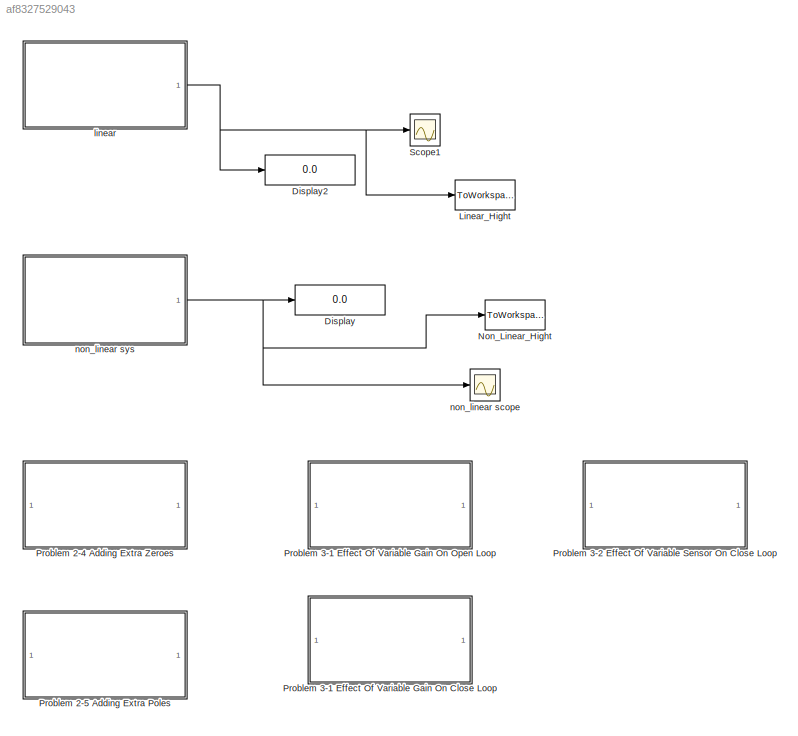
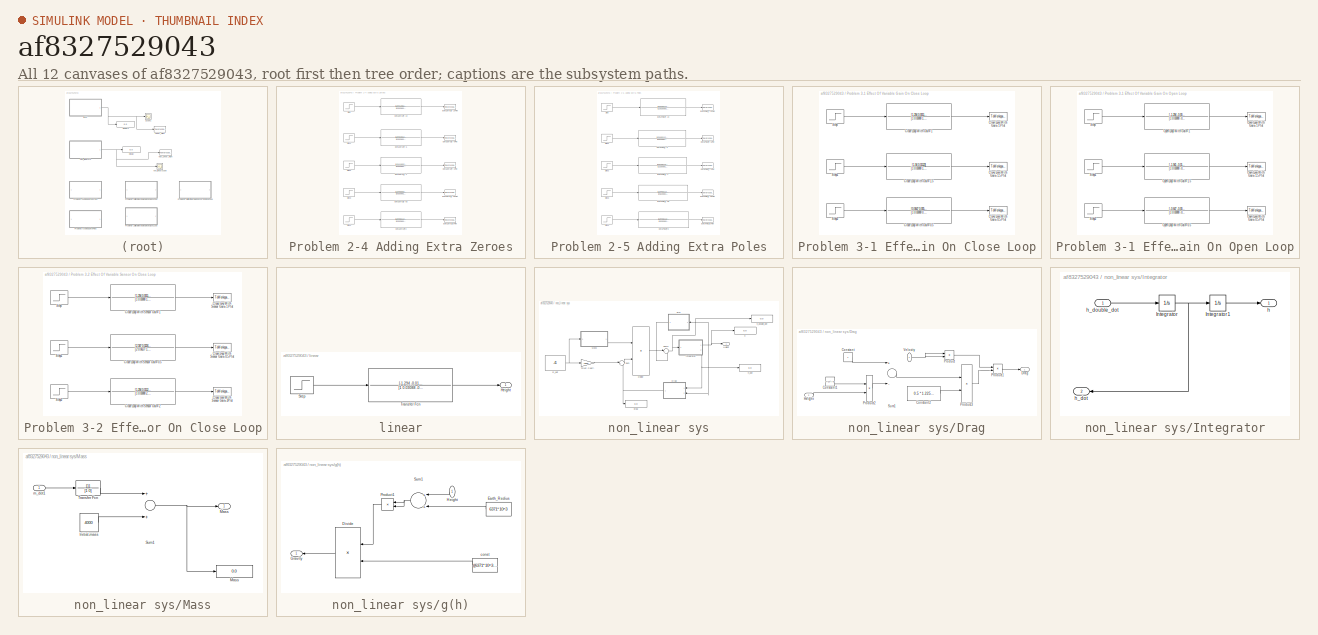
[diagram: thumbnail index - all 12 canvases of the model, root first then tree order]
MODEL slx_af8327529043
KIND model
CONFIG InitFcn = m_0 = 4000;\nK = -3000;\nt_0 = 36;\nm_dot_initial = -35;\nd = 0.17;\nS =  pi * 0.25 * d^2;\nrou_0 = 1.2251;\nsigma = 7 * 10^(-6);\nc_d = 0.4;\nk  =  6371*10^3; \ng_0 =  9.8;\nT = K *m_dot_initial;\nh = 1.271 * 10^4 ;\nV = 771.7 ;\na = 27.46 ;\nD_coef = 0.5 * rou_0 * S * c_d ;\nGravity_coef = g_0 * k^2 ; \nDr_coef = 0.5 * rou_0 * S * c_d ;\nDr_lin = V^2 * (1 - sigma * h);\nm_lin = m_0 + m_dot_initial * t_0 ;\n\n\n
BLOCK [Display] Display
  Decimation = 1
  Lockdown = off
  Ports = [1]
BLOCK [Display] Display2
  Decimation = 1
  Lockdown = off
  Ports = [1]
BLOCK [ToWorkspace] Linear_Hight
  MaxDataPoints = inf
  Ports = [1]
  SampleTime = -1
  VariableName = Linear_Hight
BLOCK [ToWorkspace] Non_Linear_Hight
  MaxDataPoints = inf
  Ports = [1]
  SampleTime = -1
  VariableName = Non_Linear_Hight
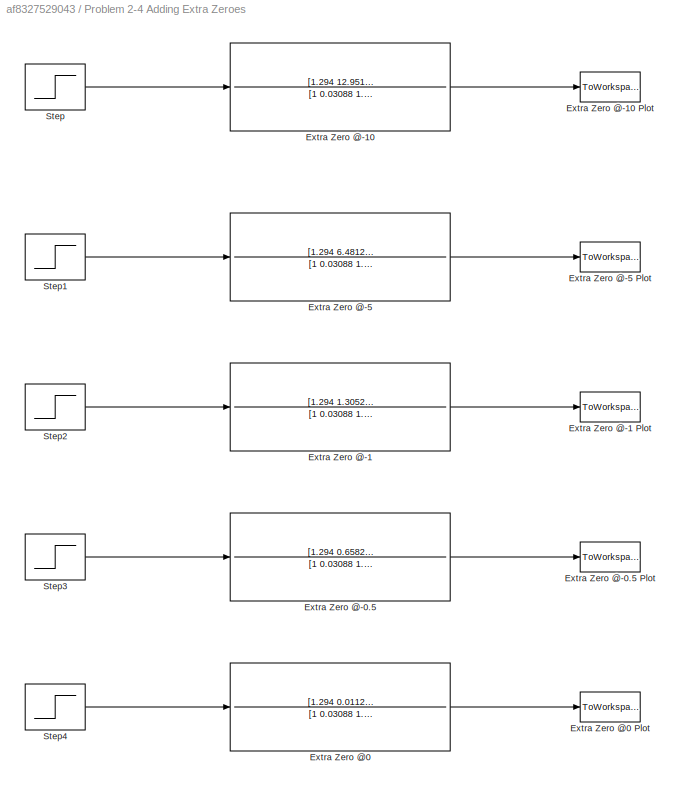
BLOCK [SubSystem] Problem 2-4 Adding Extra Zeroes
  FunctionWithSeparateData = off
  MaskHideContents = off
  MinAlgLoopOccurrences = off
  Opaque = off
  Ports = []
  PropExecContextOutsideSubsystem = off
  RTWSystemCode = Auto
  RequestExecContextInheritance = off
BLOCK [TransferFcn] Problem 2-4 Adding Extra Zeroes/Extra Zero @-0.5
  Denominator = [1 0.03088 1.293 0.01123]
  Numerator = [1.294 0.65823 0.005615]
BLOCK [ToWorkspace] Problem 2-4 Adding Extra Zeroes/Extra Zero @-0.5 Plot
  MaxDataPoints = inf
  Ports = [1]
  SampleTime = -1
  VariableName = zero_05
BLOCK [TransferFcn] Problem 2-4 Adding Extra Zeroes/Extra Zero @-1
  Denominator = [1 0.03088 1.293 0.01123]
  Numerator = [1.294 1.30523 0.01123]
BLOCK [ToWorkspace] Problem 2-4 Adding Extra Zeroes/Extra Zero @-1 Plot
  MaxDataPoints = inf
  Ports = [1]
  SampleTime = -1
  VariableName = zero_1
BLOCK [TransferFcn] Problem 2-4 Adding Extra Zeroes/Extra Zero @-10
  Denominator = [1 0.03088 1.293 0.01123]
  Numerator = [1.294 12.95123 0.1123]
BLOCK [ToWorkspace] Problem 2-4 Adding Extra Zeroes/Extra Zero @-10 Plot
  MaxDataPoints = inf
  Ports = [1]
  SampleTime = -1
  VariableName = zero_10
BLOCK [TransferFcn] Problem 2-4 Adding Extra Zeroes/Extra Zero @-5
  Denominator = [1 0.03088 1.293 0.01123]
  Numerator = [1.294 6.48123 0.05615]
BLOCK [ToWorkspace] Problem 2-4 Adding Extra Zeroes/Extra Zero @-5 Plot
  MaxDataPoints = inf
  Ports = [1]
  SampleTime = -1
  VariableName = zero_5
BLOCK [TransferFcn] Problem 2-4 Adding Extra Zeroes/Extra Zero @0
  Denominator = [1 0.03088 1.293 0.01123]
  Numerator = [1.294 0.01123 0]
BLOCK [ToWorkspace] Problem 2-4 Adding Extra Zeroes/Extra Zero @0 Plot
  MaxDataPoints = inf
  Ports = [1]
  SampleTime = -1
  VariableName = zero_0
BLOCK [Step] Problem 2-4 Adding Extra Zeroes/Step
  SampleTime = 0
BLOCK [Step] Problem 2-4 Adding Extra Zeroes/Step1
  SampleTime = 0
BLOCK [Step] Problem 2-4 Adding Extra Zeroes/Step2
  SampleTime = 0
BLOCK [Step] Problem 2-4 Adding Extra Zeroes/Step3
  SampleTime = 0
BLOCK [Step] Problem 2-4 Adding Extra Zeroes/Step4
  SampleTime = 0
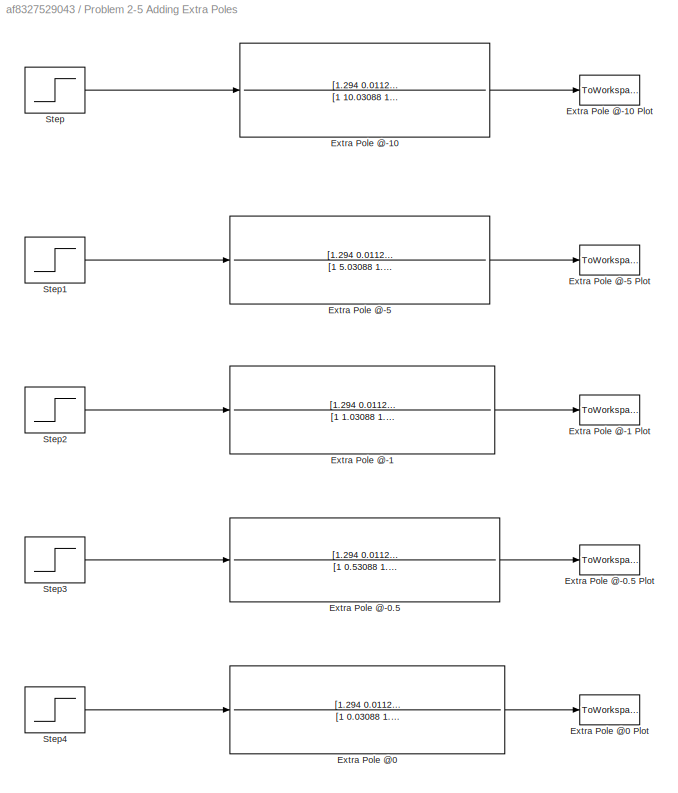
BLOCK [SubSystem] Problem 2-5 Adding Extra Poles
  FunctionWithSeparateData = off
  MaskHideContents = off
  MinAlgLoopOccurrences = off
  Opaque = off
  Ports = []
  PropExecContextOutsideSubsystem = off
  RTWSystemCode = Auto
  RequestExecContextInheritance = off
BLOCK [TransferFcn] Problem 2-5 Adding Extra Poles/Extra Pole @-0.5
  Denominator = [1 0.53088 1.30844 0.65733 0.005615]
  Numerator = [1.294 0.01123]
BLOCK [ToWorkspace] Problem 2-5 Adding Extra Poles/Extra Pole @-0.5 Plot
  MaxDataPoints = inf
  Ports = [1]
  SampleTime = -1
  VariableName = Pole_05
BLOCK [TransferFcn] Problem 2-5 Adding Extra Poles/Extra Pole @-1
  Denominator = [1 1.03088 1.32388 1.30423 0.01123]
  Numerator = [1.294 0.01123]
BLOCK [ToWorkspace] Problem 2-5 Adding Extra Poles/Extra Pole @-1 Plot
  MaxDataPoints = inf
  Ports = [1]
  SampleTime = -1
  VariableName = Pole_1
BLOCK [TransferFcn] Problem 2-5 Adding Extra Poles/Extra Pole @-10
  Denominator = [1 10.03088 1.6018 12.94123 0.1123]
  Numerator = [1.294 0.01123]
BLOCK [ToWorkspace] Problem 2-5 Adding Extra Poles/Extra Pole @-10 Plot
  MaxDataPoints = inf
  Ports = [1]
  SampleTime = -1
  VariableName = Pole_10
BLOCK [TransferFcn] Problem 2-5 Adding Extra Poles/Extra Pole @-5
  Denominator = [1 5.03088 1.4474 6.47623 0.05615]
  Numerator = [1.294 0.01123]
BLOCK [ToWorkspace] Problem 2-5 Adding Extra Poles/Extra Pole @-5 Plot
  MaxDataPoints = inf
  Ports = [1]
  SampleTime = -1
  VariableName = Pole_5
BLOCK [TransferFcn] Problem 2-5 Adding Extra Poles/Extra Pole @0
  Denominator = [1 0.03088 1.293 0.01123 0]
  Numerator = [1.294 0.01123]
BLOCK [ToWorkspace] Problem 2-5 Adding Extra Poles/Extra Pole @0 Plot
  MaxDataPoints = inf
  Ports = [1]
  SampleTime = -1
  VariableName = Pole_0
BLOCK [Step] Problem 2-5 Adding Extra Poles/Step
  SampleTime = 0
BLOCK [Step] Problem 2-5 Adding Extra Poles/Step1
  SampleTime = 0
BLOCK [Step] Problem 2-5 Adding Extra Poles/Step2
  SampleTime = 0
BLOCK [Step] Problem 2-5 Adding Extra Poles/Step3
  SampleTime = 0
BLOCK [Step] Problem 2-5 Adding Extra Poles/Step4
  SampleTime = 0
BLOCK [SubSystem] Problem 3-1 Effect Of Variable Gain On Close Loop
  FunctionWithSeparateData = off
  MaskHideContents = off
  MinAlgLoopOccurrences = off
  Opaque = off
  Ports = []
  PropExecContextOutsideSubsystem = off
  RTWSystemCode = Auto
  RequestExecContextInheritance = off
BLOCK [TransferFcn] Problem 3-1 Effect Of Variable Gain On Close Loop/Close Loop With Gain=0.5
  Denominator = [1 0.03088 0.0647 0.005615]
  Numerator = [0.0647 0.005615]
BLOCK [ToWorkspace] Problem 3-1 Effect Of Variable Gain On Close Loop/Close Loop With Gain=0.5 Plot
  MaxDataPoints = inf
  Ports = [1]
  SampleTime = -1
  VariableName = gain_05_close
BLOCK [TransferFcn] Problem 3-1 Effect Of Variable Gain On Close Loop/Close Loop With Gain=1
  Denominator = [1 0.03088 1.293 0.001123]
  Numerator = [1.294 0.001123 ]
BLOCK [ToWorkspace] Problem 3-1 Effect Of Variable Gain On Close Loop/Close Loop With Gain=1 Plot
  MaxDataPoints = inf
  Ports = [1]
  SampleTime = -1
  VariableName = gain_1_close
BLOCK [TransferFcn] Problem 3-1 Effect Of Variable Gain On Close Loop/Close Loop With Gain=1.5
  Denominator = [1 0.03088 1.94 0.01123]
  Numerator = [1.94 0.01123]
BLOCK [ToWorkspace] Problem 3-1 Effect Of Variable Gain On Close Loop/Close Loop With Gain=1.5 Plot
  MaxDataPoints = inf
  Ports = [1]
  SampleTime = -1
  VariableName = gain_15_close
BLOCK [Step] Problem 3-1 Effect Of Variable Gain On Close Loop/Step
  SampleTime = 0
BLOCK [Step] Problem 3-1 Effect Of Variable Gain On Close Loop/Step1
  SampleTime = 0
BLOCK [Step] Problem 3-1 Effect Of Variable Gain On Close Loop/Step2
  SampleTime = 0
BLOCK [SubSystem] Problem 3-1 Effect Of Variable Gain On Open Loop
  FunctionWithSeparateData = off
  MaskHideContents = off
  MinAlgLoopOccurrences = off
  Opaque = off
  Ports = []
  PropExecContextOutsideSubsystem = off
  RTWSystemCode = Auto
  RequestExecContextInheritance = off
BLOCK [TransferFcn] Problem 3-1 Effect Of Variable Gain On Open Loop/Open Loop With Gain=0.5
  Denominator = [1 0.03088 -0.0002205 0]
  Numerator = [-0.647 -0.005615]
BLOCK [ToWorkspace] Problem 3-1 Effect Of Variable Gain On Open Loop/Open Loop With Gain=0.5 Plot
  MaxDataPoints = inf
  Ports = [1]
  SampleTime = -1
  VariableName = gain_05
BLOCK [TransferFcn] Problem 3-1 Effect Of Variable Gain On Open Loop/Open Loop With Gain=1
  Denominator = [1 0.03088 -0.0002205 0]
  Numerator = [-1.294 -0.001123 ]
BLOCK [ToWorkspace] Problem 3-1 Effect Of Variable Gain On Open Loop/Open Loop With Gain=1 Plot
  MaxDataPoints = inf
  Ports = [1]
  SampleTime = -1
  VariableName = gain_1
BLOCK [TransferFcn] Problem 3-1 Effect Of Variable Gain On Open Loop/Open Loop With Gain=1.5
  Denominator = [1 0.03088 -0.0002205 0]
  Numerator = [-1.941 -0.016854]
BLOCK [ToWorkspace] Problem 3-1 Effect Of Variable Gain On Open Loop/Open Loop With Gain=1.5 Plot
  MaxDataPoints = inf
  Ports = [1]
  SampleTime = -1
  VariableName = gain_15
BLOCK [Step] Problem 3-1 Effect Of Variable Gain On Open Loop/Step
  After = -41
  SampleTime = 0
BLOCK [Step] Problem 3-1 Effect Of Variable Gain On Open Loop/Step1
  After = -41
  SampleTime = 0
BLOCK [Step] Problem 3-1 Effect Of Variable Gain On Open Loop/Step2
  After = -41
  SampleTime = 0
BLOCK [SubSystem] Problem 3-2 Effect Of Variable Sensor On Close Loop
  FunctionWithSeparateData = off
  MaskHideContents = off
  MinAlgLoopOccurrences = off
  Opaque = off
  Ports = []
  PropExecContextOutsideSubsystem = off
  RTWSystemCode = Auto
  RequestExecContextInheritance = off
BLOCK [TransferFcn] Problem 3-2 Effect Of Variable Sensor On Close Loop/Close Loop With Sensor Gain=0.5
  Denominator = [2 0.06177 1.293 0.01123]
  Numerator = [2.587 0.02246]
BLOCK [ToWorkspace] Problem 3-2 Effect Of Variable Sensor On Close Loop/Close Loop With Sensor Gain=0.5 Plot
  MaxDataPoints = inf
  Ports = [1]
  SampleTime = -1
  VariableName = sensor_05_close
BLOCK [TransferFcn] Problem 3-2 Effect Of Variable Sensor On Close Loop/Close Loop With Sensor Gain=1
  Denominator = [1 0.03088 1.293 0.001123]
  Numerator = [1.294 0.001123 ]
BLOCK [ToWorkspace] Problem 3-2 Effect Of Variable Sensor On Close Loop/Close Loop With Sensor Gain=1 Plot
  MaxDataPoints = inf
  Ports = [1]
  SampleTime = -1
  VariableName = sensor_1_close
BLOCK [TransferFcn] Problem 3-2 Effect Of Variable Sensor On Close Loop/Close Loop With Sensor Gain=2
  Denominator = [1 0.03088 2.587 0.02246]
  Numerator = [1.294 0.01123]
BLOCK [ToWorkspace] Problem 3-2 Effect Of Variable Sensor On Close Loop/Close Loop With Sensor Gain=2Plot
  MaxDataPoints = inf
  Ports = [1]
  SampleTime = -1
  VariableName = sensor_2_close
BLOCK [Step] Problem 3-2 Effect Of Variable Sensor On Close Loop/Step
  SampleTime = 0
BLOCK [Step] Problem 3-2 Effect Of Variable Sensor On Close Loop/Step1
  SampleTime = 0
BLOCK [Step] Problem 3-2 Effect Of Variable Sensor On Close Loop/Step2
  SampleTime = 0
BLOCK [Scope] Scope1
  DataFormat = StructureWithTime
  Floating = off
  NumInputPorts = 1
  Ports = [1]
  SampleTime = 0
  SaveName = ScopeData1
  ShowLegends = off
BLOCK [SubSystem] linear
  FunctionWithSeparateData = off
  MaskHideContents = off
  MinAlgLoopOccurrences = off
  Opaque = off
  Ports = [0, 1]
  PropExecContextOutsideSubsystem = off
  RTWSystemCode = Auto
  RequestExecContextInheritance = off
BLOCK [Outport] linear/Height
  IconDisplay = Port number
BLOCK [Step] linear/Step
  After = -41
  SampleTime = 0
BLOCK [TransferFcn] linear/Transfer Fcn
  Denominator = [1 0.03088 -0.0002205 0]
  Numerator = [-1.294 -0.01123]
BLOCK [Scope] non_linear scope
  DataFormat = StructureWithTime
  Floating = off
  NumInputPorts = 1
  Ports = [1]
  SampleTime = 0
  ShowLegends = off
BLOCK [SubSystem] non_linear sys
  FunctionWithSeparateData = off
  MaskHideContents = off
  MinAlgLoopOccurrences = off
  Opaque = off
  Ports = [0, 1]
  PropExecContextOutsideSubsystem = off
  RTWSystemCode = Auto
  RequestExecContextInheritance = off
BLOCK [Product] non_linear sys/Divide
  InputSameDT = off
  Inputs = /*
  OutDataTypeStr = Inherit: Inherit via internal rule
  Ports = [2, 1]
  RndMeth = Floor
  SaturateOnIntegerOverflow = off
BLOCK [SubSystem] non_linear sys/Drag
  FunctionWithSeparateData = off
  MaskHideContents = off
  MinAlgLoopOccurrences = off
  Opaque = off
  Ports = [2, 1]
  PropExecContextOutsideSubsystem = off
  RTWSystemCode = Auto
  RequestExecContextInheritance = off
BLOCK [Constant] non_linear sys/Drag/Constant
BLOCK [Constant] non_linear sys/Drag/Constant1
  Value = 7*10^(-6)
BLOCK [Constant] non_linear sys/Drag/Constant2
  Value = 0.5 * 1.225 * 3.14*(0.7^2)*0.25 * 0.4
BLOCK [Outport] non_linear sys/Drag/Drag
  IconDisplay = Port number
BLOCK [Inport] non_linear sys/Drag/Height
  IconDisplay = Port number
  Port = 2
BLOCK [Product] non_linear sys/Drag/Product
  InputSameDT = off
  OutDataTypeStr = Inherit: Inherit via internal rule
  Ports = [2, 1]
  RndMeth = Floor
  SaturateOnIntegerOverflow = off
BLOCK [Product] non_linear sys/Drag/Product1
  InputSameDT = off
  OutDataTypeStr = Inherit: Inherit via internal rule
  Ports = [2, 1]
  RndMeth = Floor
  SaturateOnIntegerOverflow = off
BLOCK [Product] non_linear sys/Drag/Product2
  InputSameDT = off
  OutDataTypeStr = Inherit: Inherit via internal rule
  Ports = [2, 1]
  RndMeth = Floor
  SaturateOnIntegerOverflow = off
BLOCK [Product] non_linear sys/Drag/Product3
  InputSameDT = off
  OutDataTypeStr = Inherit: Inherit via internal rule
  Ports = [2, 1]
  RndMeth = Floor
  SaturateOnIntegerOverflow = off
BLOCK [Sum] non_linear sys/Drag/Sum1
  InputSameDT = off
  Inputs = +-
  OutDataTypeStr = Inherit: Inherit via internal rule
  Ports = [2, 1]
  SaturateOnIntegerOverflow = off
BLOCK [Inport] non_linear sys/Drag/Velocity
  IconDisplay = Port number
BLOCK [Outport] non_linear sys/Height
  IconDisplay = Port number
BLOCK [SubSystem] non_linear sys/Integrator
  FunctionWithSeparateData = off
  MaskHideContents = off
  MinAlgLoopOccurrences = off
  Opaque = off
  Ports = [1, 2]
  PropExecContextOutsideSubsystem = off
  RTWSystemCode = Auto
  RequestExecContextInheritance = off
BLOCK [Integrator] non_linear sys/Integrator/Integrator
  Ports = [1, 1]
BLOCK [Integrator] non_linear sys/Integrator/Integrator1
  Ports = [1, 1]
BLOCK [Outport] non_linear sys/Integrator/h
  IconDisplay = Port number
BLOCK [Outport] non_linear sys/Integrator/h_dot
  IconDisplay = Port number
  Port = 2
BLOCK [Inport] non_linear sys/Integrator/h_double_dot
  IconDisplay = Port number
BLOCK [SubSystem] non_linear sys/Mass
  FunctionWithSeparateData = off
  MaskHideContents = off
  MinAlgLoopOccurrences = off
  Opaque = off
  Ports = [1, 1]
  PropExecContextOutsideSubsystem = off
  RTWSystemCode = Auto
  RequestExecContextInheritance = off
BLOCK [Constant] non_linear sys/Mass/Initial-mass
  Value = 4000
BLOCK [Outport] non_linear sys/Mass/Mass
  IconDisplay = Port number
BLOCK [Display] non_linear sys/Mass/Mass 
  Decimation = 1
  Lockdown = off
  Ports = [1]
BLOCK [Sum] non_linear sys/Mass/Sum1
  InputSameDT = off
  OutDataTypeStr = Inherit: Inherit via internal rule
  Ports = [2, 1]
  SaturateOnIntegerOverflow = off
BLOCK [TransferFcn] non_linear sys/Mass/Transfer Fcn
  Denominator = [1 0]
BLOCK [Inport] non_linear sys/Mass/m_dot1
  IconDisplay = Port number
BLOCK [Sum] non_linear sys/Sum
  IconShape = round
  InputSameDT = off
  Inputs = |+-
  OutDataTypeStr = Inherit: Inherit via internal rule
  Ports = [2, 1]
  SaturateOnIntegerOverflow = off
BLOCK [Sum] non_linear sys/Sum2
  IconShape = round
  InputSameDT = off
  Inputs = |+-
  OutDataTypeStr = Inherit: Inherit via internal rule
  Ports = [2, 1]
  SaturateOnIntegerOverflow = off
BLOCK [Gain] non_linear sys/Thrust Coeff.
  Gain = -3000
  OutDataTypeStr = Inherit: Inherit via internal rule
  ParamDataTypeStr = Inherit: Inherit via internal rule
  SaturateOnIntegerOverflow = off
BLOCK [Display] non_linear sys/drag
  Decimation = 1
  Lockdown = off
  Ports = [1]
BLOCK [SubSystem] non_linear sys/g(h)
  FunctionWithSeparateData = off
  MaskHideContents = off
  MinAlgLoopOccurrences = off
  Opaque = off
  Ports = [1, 1]
  PropExecContextOutsideSubsystem = off
  RTWSystemCode = Auto
  RequestExecContextInheritance = off
BLOCK [Product] non_linear sys/g(h)/Divide
  InputSameDT = off
  Inputs = /*
  OutDataTypeStr = Inherit: Inherit via internal rule
  Ports = [2, 1]
  RndMeth = Floor
  SaturateOnIntegerOverflow = off
BLOCK [Constant] non_linear sys/g(h)/Earth_Redius
  Value = 6371*10^3
BLOCK [Outport] non_linear sys/g(h)/Gravity
  IconDisplay = Port number
BLOCK [Inport] non_linear sys/g(h)/Height
  IconDisplay = Port number
BLOCK [Product] non_linear sys/g(h)/Product1
  InputSameDT = off
  OutDataTypeStr = Inherit: Inherit via internal rule
  Ports = [2, 1]
  RndMeth = Floor
  SaturateOnIntegerOverflow = off
BLOCK [Sum] non_linear sys/g(h)/Sum1
  InputSameDT = off
  OutDataTypeStr = Inherit: Inherit via internal rule
  Ports = [2, 1]
  SaturateOnIntegerOverflow = off
BLOCK [Constant] non_linear sys/g(h)/const
  Value = ((6371*10^3)^2)*9.81
BLOCK [Display] non_linear sys/h
  Decimation = 1
  Lockdown = off
  Ports = [1]
BLOCK [Display] non_linear sys/h_dot
  Decimation = 1
  Lockdown = off
  Ports = [1]
BLOCK [Display] non_linear sys/h_double_dot
  Decimation = 1
  Lockdown = off
  Ports = [1]
BLOCK [Constant] non_linear sys/m_dot
  Value = -41
LINE Problem 2-4 Adding Extra Zeroes/Extra Zero @-0.5:1 -> Problem 2-4 Adding Extra Zeroes/Extra Zero @-0.5 Plot:1
LINE Problem 2-4 Adding Extra Zeroes/Extra Zero @-10:1 -> Problem 2-4 Adding Extra Zeroes/Extra Zero @-10 Plot:1
LINE Problem 2-4 Adding Extra Zeroes/Extra Zero @-1:1 -> Problem 2-4 Adding Extra Zeroes/Extra Zero @-1 Plot:1
LINE Problem 2-4 Adding Extra Zeroes/Extra Zero @-5:1 -> Problem 2-4 Adding Extra Zeroes/Extra Zero @-5 Plot:1
LINE Problem 2-4 Adding Extra Zeroes/Extra Zero @0:1 -> Problem 2-4 Adding Extra Zeroes/Extra Zero @0 Plot:1
LINE Problem 2-4 Adding Extra Zeroes/Step1:1 -> Problem 2-4 Adding Extra Zeroes/Extra Zero @-5:1
LINE Problem 2-4 Adding Extra Zeroes/Step2:1 -> Problem 2-4 Adding Extra Zeroes/Extra Zero @-1:1
LINE Problem 2-4 Adding Extra Zeroes/Step3:1 -> Problem 2-4 Adding Extra Zeroes/Extra Zero @-0.5:1
LINE Problem 2-4 Adding Extra Zeroes/Step4:1 -> Problem 2-4 Adding Extra Zeroes/Extra Zero @0:1
LINE Problem 2-4 Adding Extra Zeroes/Step:1 -> Problem 2-4 Adding Extra Zeroes/Extra Zero @-10:1
LINE Problem 2-5 Adding Extra Poles/Extra Pole @-0.5:1 -> Problem 2-5 Adding Extra Poles/Extra Pole @-0.5 Plot:1
LINE Problem 2-5 Adding Extra Poles/Extra Pole @-10:1 -> Problem 2-5 Adding Extra Poles/Extra Pole @-10 Plot:1
LINE Problem 2-5 Adding Extra Poles/Extra Pole @-1:1 -> Problem 2-5 Adding Extra Poles/Extra Pole @-1 Plot:1
LINE Problem 2-5 Adding Extra Poles/Extra Pole @-5:1 -> Problem 2-5 Adding Extra Poles/Extra Pole @-5 Plot:1
LINE Problem 2-5 Adding Extra Poles/Extra Pole @0:1 -> Problem 2-5 Adding Extra Poles/Extra Pole @0 Plot:1
LINE Problem 2-5 Adding Extra Poles/Step1:1 -> Problem 2-5 Adding Extra Poles/Extra Pole @-5:1
LINE Problem 2-5 Adding Extra Poles/Step2:1 -> Problem 2-5 Adding Extra Poles/Extra Pole @-1:1
LINE Problem 2-5 Adding Extra Poles/Step3:1 -> Problem 2-5 Adding Extra Poles/Extra Pole @-0.5:1
LINE Problem 2-5 Adding Extra Poles/Step4:1 -> Problem 2-5 Adding Extra Poles/Extra Pole @0:1
LINE Problem 2-5 Adding Extra Poles/Step:1 -> Problem 2-5 Adding Extra Poles/Extra Pole @-10:1
LINE Problem 3-1 Effect Of Variable Gain On Close Loop/Close Loop With Gain=0.5:1 -> Problem 3-1 Effect Of Variable Gain On Close Loop/Close Loop With Gain=0.5 Plot:1
LINE Problem 3-1 Effect Of Variable Gain On Close Loop/Close Loop With Gain=1.5:1 -> Problem 3-1 Effect Of Variable Gain On Close Loop/Close Loop With Gain=1.5 Plot:1
LINE Problem 3-1 Effect Of Variable Gain On Close Loop/Close Loop With Gain=1:1 -> Problem 3-1 Effect Of Variable Gain On Close Loop/Close Loop With Gain=1 Plot:1
LINE Problem 3-1 Effect Of Variable Gain On Close Loop/Step1:1 -> Problem 3-1 Effect Of Variable Gain On Close Loop/Close Loop With Gain=1.5:1
LINE Problem 3-1 Effect Of Variable Gain On Close Loop/Step2:1 -> Problem 3-1 Effect Of Variable Gain On Close Loop/Close Loop With Gain=0.5:1
LINE Problem 3-1 Effect Of Variable Gain On Close Loop/Step:1 -> Problem 3-1 Effect Of Variable Gain On Close Loop/Close Loop With Gain=1:1
LINE Problem 3-1 Effect Of Variable Gain On Open Loop/Open Loop With Gain=0.5:1 -> Problem 3-1 Effect Of Variable Gain On Open Loop/Open Loop With Gain=0.5 Plot:1
LINE Problem 3-1 Effect Of Variable Gain On Open Loop/Open Loop With Gain=1.5:1 -> Problem 3-1 Effect Of Variable Gain On Open Loop/Open Loop With Gain=1.5 Plot:1
LINE Problem 3-1 Effect Of Variable Gain On Open Loop/Open Loop With Gain=1:1 -> Problem 3-1 Effect Of Variable Gain On Open Loop/Open Loop With Gain=1 Plot:1
LINE Problem 3-1 Effect Of Variable Gain On Open Loop/Step1:1 -> Problem 3-1 Effect Of Variable Gain On Open Loop/Open Loop With Gain=1.5:1
LINE Problem 3-1 Effect Of Variable Gain On Open Loop/Step2:1 -> Problem 3-1 Effect Of Variable Gain On Open Loop/Open Loop With Gain=0.5:1
LINE Problem 3-1 Effect Of Variable Gain On Open Loop/Step:1 -> Problem 3-1 Effect Of Variable Gain On Open Loop/Open Loop With Gain=1:1
LINE Problem 3-2 Effect Of Variable Sensor On Close Loop/Close Loop With Sensor Gain=0.5:1 -> Problem 3-2 Effect Of Variable Sensor On Close Loop/Close Loop With Sensor Gain=0.5 Plot:1
LINE Problem 3-2 Effect Of Variable Sensor On Close Loop/Close Loop With Sensor Gain=1:1 -> Problem 3-2 Effect Of Variable Sensor On Close Loop/Close Loop With Sensor Gain=1 Plot:1
LINE Problem 3-2 Effect Of Variable Sensor On Close Loop/Close Loop With Sensor Gain=2:1 -> Problem 3-2 Effect Of Variable Sensor On Close Loop/Close Loop With Sensor Gain=2Plot:1
LINE Problem 3-2 Effect Of Variable Sensor On Close Loop/Step1:1 -> Problem 3-2 Effect Of Variable Sensor On Close Loop/Close Loop With Sensor Gain=0.5:1
LINE Problem 3-2 Effect Of Variable Sensor On Close Loop/Step2:1 -> Problem 3-2 Effect Of Variable Sensor On Close Loop/Close Loop With Sensor Gain=2:1
LINE Problem 3-2 Effect Of Variable Sensor On Close Loop/Step:1 -> Problem 3-2 Effect Of Variable Sensor On Close Loop/Close Loop With Sensor Gain=1:1
LINE linear/Step:1 -> linear/Transfer Fcn:1
LINE linear/Transfer Fcn:1 -> linear/Height:1
NET linear:1 -> Display2:1, Linear_Hight:1, Scope1:1
LINE non_linear sys/Divide:1 -> non_linear sys/Sum2:1
LINE non_linear sys/Drag/Constant1:1 -> non_linear sys/Drag/Product2:1
LINE non_linear sys/Drag/Constant2:1 -> non_linear sys/Drag/Product3:2
LINE non_linear sys/Drag/Constant:1 -> non_linear sys/Drag/Sum1:1
LINE non_linear sys/Drag/Height:1 -> non_linear sys/Drag/Product2:2
LINE non_linear sys/Drag/Product1:1 -> non_linear sys/Drag/Drag:1
LINE non_linear sys/Drag/Product2:1 -> non_linear sys/Drag/Sum1:2
LINE non_linear sys/Drag/Product3:1 -> non_linear sys/Drag/Product1:2
LINE non_linear sys/Drag/Product:1 -> non_linear sys/Drag/Product1:1
LINE non_linear sys/Drag/Sum1:1 -> non_linear sys/Drag/Product3:1
NET non_linear sys/Drag/Velocity:1 -> non_linear sys/Drag/Product:1, non_linear sys/Drag/Product:2
NET non_linear sys/Drag:1 -> non_linear sys/Sum:2, non_linear sys/drag:1
LINE non_linear sys/Integrator/Integrator1:1 -> non_linear sys/Integrator/h:1
NET non_linear sys/Integrator/Integrator:1 -> non_linear sys/Integrator/Integrator1:1, non_linear sys/Integrator/h_dot:1
LINE non_linear sys/Integrator/h_double_dot:1 -> non_linear sys/Integrator/Integrator:1
NET non_linear sys/Integrator:1 -> non_linear sys/Drag:2, non_linear sys/Height:1, non_linear sys/g(h):1, non_linear sys/h:1
NET non_linear sys/Integrator:2 -> non_linear sys/Drag:1, non_linear sys/h_dot:1
LINE non_linear sys/Mass/Initial-mass:1 -> non_linear sys/Mass/Sum1:2
NET non_linear sys/Mass/Sum1:1 -> non_linear sys/Mass/Mass :1, non_linear sys/Mass/Mass:1
LINE non_linear sys/Mass/Transfer Fcn:1 -> non_linear sys/Mass/Sum1:1
LINE non_linear sys/Mass/m_dot1:1 -> non_linear sys/Mass/Transfer Fcn:1
LINE non_linear sys/Mass:1 -> non_linear sys/Divide:1
NET non_linear sys/Sum2:1 -> non_linear sys/Integrator:1, non_linear sys/h_double_dot:1
LINE non_linear sys/Sum:1 -> non_linear sys/Divide:2
LINE non_linear sys/Thrust Coeff.:1 -> non_linear sys/Sum:1
LINE non_linear sys/g(h)/Divide:1 -> non_linear sys/g(h)/Gravity:1
LINE non_linear sys/g(h)/Earth_Redius:1 -> non_linear sys/g(h)/Sum1:2
LINE non_linear sys/g(h)/Height:1 -> non_linear sys/g(h)/Sum1:1
LINE non_linear sys/g(h)/Product1:1 -> non_linear sys/g(h)/Divide:1
NET non_linear sys/g(h)/Sum1:1 -> non_linear sys/g(h)/Product1:1, non_linear sys/g(h)/Product1:2
LINE non_linear sys/g(h)/const:1 -> non_linear sys/g(h)/Divide:2
LINE non_linear sys/g(h):1 -> non_linear sys/Sum2:2
NET non_linear sys/m_dot:1 -> non_linear sys/Mass:1, non_linear sys/Thrust Coeff.:1
NET non_linear sys:1 -> Display:1, Non_Linear_Hight:1, non_linear scope:1
note: NET lines group one-source signal fan-out (src -> all destinations, sorted); 1:1 wires keep LINE
